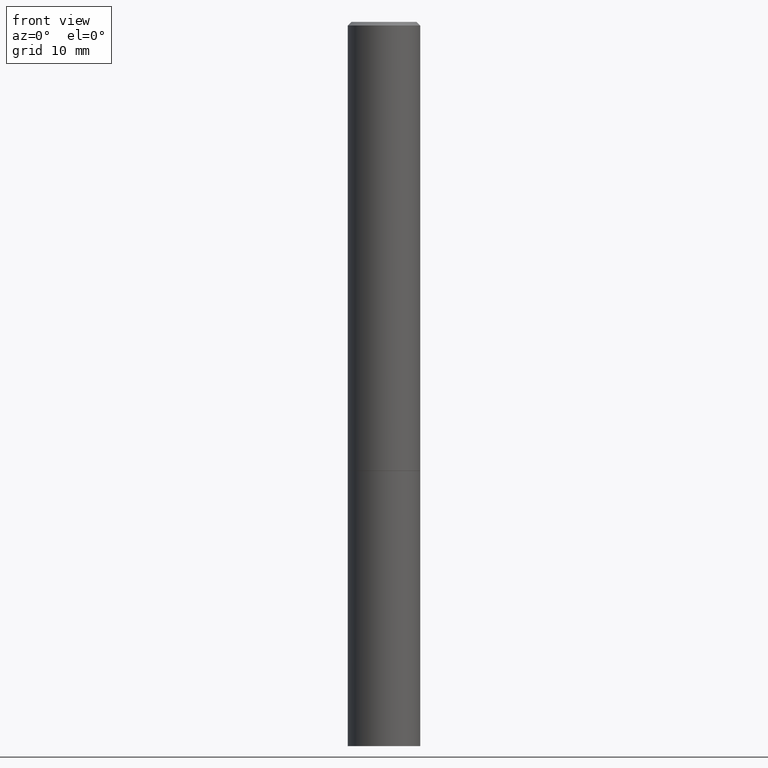
[diagram: clean part render]
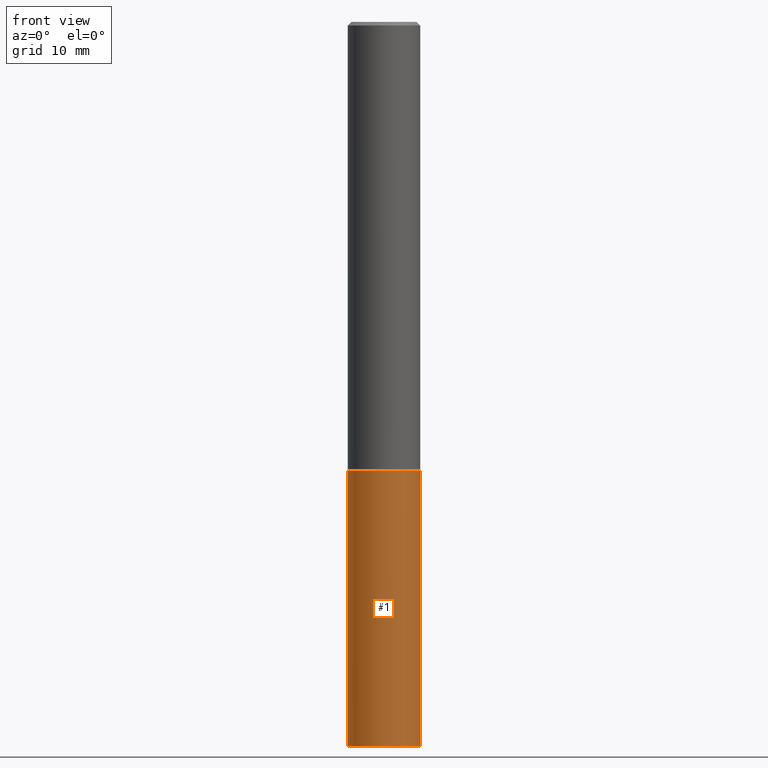
[diagram: same view with one face highlighted and labeled with its STEP entity id]
A machine part, front view. The second image highlights one B-rep face of the part: STEP entity #1.
In plain terms, the highlighted cylindrical surface (edge-blend (fillet) strip) has radius 5 mm, axis along (-0, 0, 1).
Its self-contained STEP definition (entity closure, byte-faithful):
#1 = ADVANCED_FACE ( 'NONE', ( #193 ), #311, .T. ) ;
#6 = CARTESIAN_POINT ( 'NONE',  ( 0.1968500000000000250, -1.512055823412800660E-14, -3.937000000000000277 ) ) ;
#12 = CIRCLE ( 'NONE', #315, 0.1968500000000000250 ) ;
#25 = AXIS2_PLACEMENT_3D ( 'NONE', #249, #336, #51 ) ;
#33 = VERTEX_POINT ( 'NONE', #357 ) ;
#42 = LINE ( 'NONE', #348, #365 ) ;
#45 = EDGE_CURVE ( 'NONE', #72, #33, #107, .T. ) ;
#51 = DIRECTION ( 'NONE',  ( 1.000000000000000000, -6.982962677686267499E-15, 0.000000000000000000 ) ) ;
#58 = EDGE_CURVE ( 'NONE', #156, #262, #42, .T. ) ;
#72 = VERTEX_POINT ( 'NONE', #6 ) ;
#77 = DIRECTION ( 'NONE',  ( -2.445468806185136877E-29, 3.491481338843145188E-15, 1.000000000000000000 ) ) ;
#81 = CARTESIAN_POINT ( 'NONE',  ( -0.1968500000000000250, -9.735456040160091980E-15, -2.440900000000000070 ) ) ;
#107 = LINE ( 'NONE', #218, #258 ) ;
#111 = DIRECTION ( 'NONE',  ( 1.000000000000000000, -6.982962677686262766E-15, 0.000000000000000000 ) ) ;
#128 = AXIS2_PLACEMENT_3D ( 'NONE', #333, #161, #273 ) ;
#156 = VERTEX_POINT ( 'NONE', #353 ) ;
#161 = DIRECTION ( 'NONE',  ( -2.445468806185136597E-29, 3.491481338843145583E-15, 1.000000000000000000 ) ) ;
#180 = ORIENTED_EDGE ( 'NONE', *, *, #198, .F. ) ;
#186 = DIRECTION ( 'NONE',  ( -2.445468806185136597E-29, 3.491481338843145583E-15, 1.000000000000000000 ) ) ;
#193 = FACE_OUTER_BOUND ( 'NONE', #200, .T. ) ;
#198 = EDGE_CURVE ( 'NONE', #262, #33, #12, .T. ) ;
#200 = EDGE_LOOP ( 'NONE', ( #233, #339, #325, #180 ) ) ;
#203 = DIRECTION ( 'NONE',  ( -2.445468806185136877E-29, 3.491481338843145188E-15, 1.000000000000000000 ) ) ;
#218 = CARTESIAN_POINT ( 'NONE',  ( 0.1968500000000000250, -1.374596203102541608E-15, 9.598753983154300858E-30 ) ) ;
#220 = EDGE_CURVE ( 'NONE', #156, #72, #254, .T. ) ;
#233 = ORIENTED_EDGE ( 'NONE', *, *, #58, .F. ) ;
#249 = CARTESIAN_POINT ( 'NONE',  ( 9.627810689950883669E-29, -1.374596203102546341E-14, -3.937000000000000277 ) ) ;
#254 = CIRCLE ( 'NONE', #25, 0.1968500000000000250 ) ;
#258 = VECTOR ( 'NONE', #77, 39.37007874015748143 ) ;
#262 = VERTEX_POINT ( 'NONE', #81 ) ;
#273 = DIRECTION ( 'NONE',  ( 1.000000000000000000, -6.982962677686265922E-15, 4.876176775795935793E-29 ) ) ;
#309 = CARTESIAN_POINT ( 'NONE',  ( 5.969144809017299038E-29, -8.522356799982232966E-15, -2.440900000000000070 ) ) ;
#311 = CYLINDRICAL_SURFACE ( 'NONE', #128, 0.1968500000000000250 ) ;
#315 = AXIS2_PLACEMENT_3D ( 'NONE', #309, #186, #111 ) ;
#325 = ORIENTED_EDGE ( 'NONE', *, *, #45, .T. ) ;
#333 = CARTESIAN_POINT ( 'NONE',  ( 0.000000000000000000, 0.000000000000000000, 0.000000000000000000 ) ) ;
#336 = DIRECTION ( 'NONE',  ( -2.445468806185136597E-29, 3.491481338843145583E-15, 1.000000000000000000 ) ) ;
#339 = ORIENTED_EDGE ( 'NONE', *, *, #220, .T. ) ;
#348 = CARTESIAN_POINT ( 'NONE',  ( -0.1968500000000000250, 1.398703375343757393E-15, -9.682923725166783677E-30 ) ) ;
#353 = CARTESIAN_POINT ( 'NONE',  ( -0.1968500000000000250, -9.735456040160091980E-15, -3.937000000000000277 ) ) ;
#357 = CARTESIAN_POINT ( 'NONE',  ( 0.1968500000000000250, -9.896953003084774574E-15, -2.440900000000000070 ) ) ;
#365 = VECTOR ( 'NONE', #203, 39.37007874015748143 ) ;